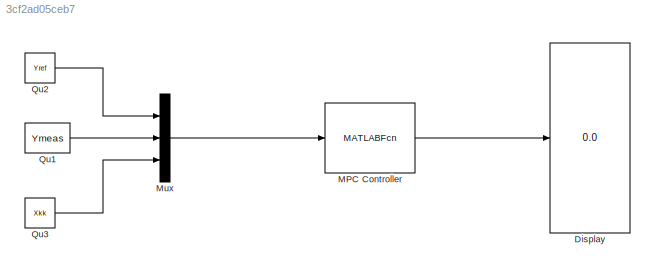
MODEL slx_3cf2ad05ceb7
KIND model
CONFIG AbsTol = auto
CONFIG FixedStep = auto
CONFIG MaxStep = auto
CONFIG MinStep = auto
CONFIG RelTol = 1e-3
CONFIG SampleTimeConstraint = Unconstrained
CONFIG Solver = VariableStepAuto
CONFIG SolverMode = Auto
CONFIG SolverName = VariableStepAuto
CONFIG StartTime = 0.0
CONFIG StopTime = 10.0
BLOCK [Display] Display
  Decimation = 1
  Ports = [1]
BLOCK [MATLABFcn] MPC Controller
  MATLABFcn = Controller
  Output1D = off
  Ports = [1, 1]
BLOCK [Mux] Mux
  DisplayOption = bar
  Inputs = 3
  Ports = [3, 1]
BLOCK [Constant] Qu1
  Value = Ymeas
  VectorParams1D = off
BLOCK [Constant] Qu2
  Value = Yref
  VectorParams1D = off
BLOCK [Constant] Qu3
  Value = Xkk
  VectorParams1D = off
LINE MPC Controller:1 -> Display:1
LINE Mux:1 -> MPC Controller:1
LINE Qu1:1 -> Mux:2
LINE Qu2:1 -> Mux:1
LINE Qu3:1 -> Mux:3
